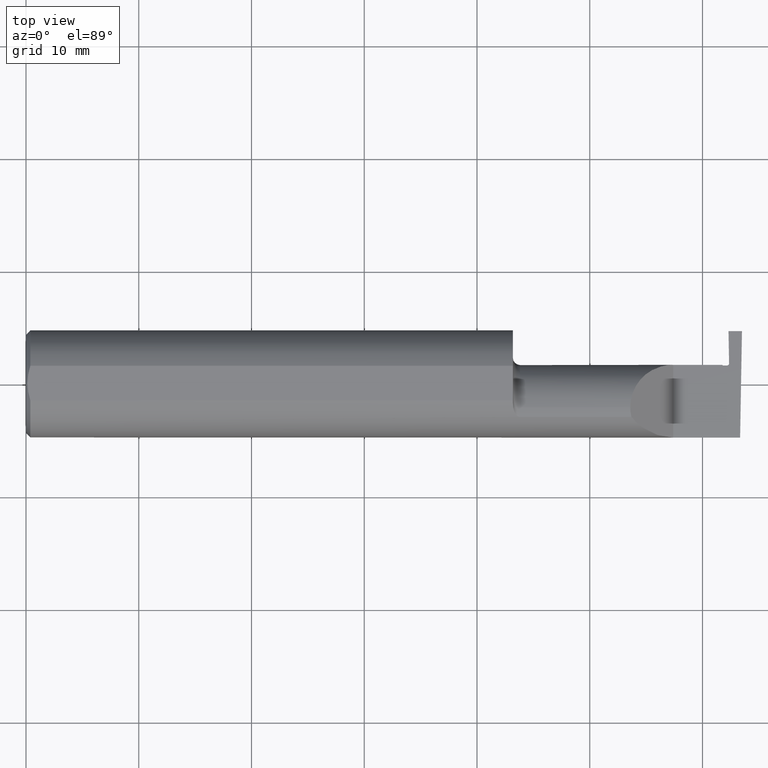
[diagram: clean part render]
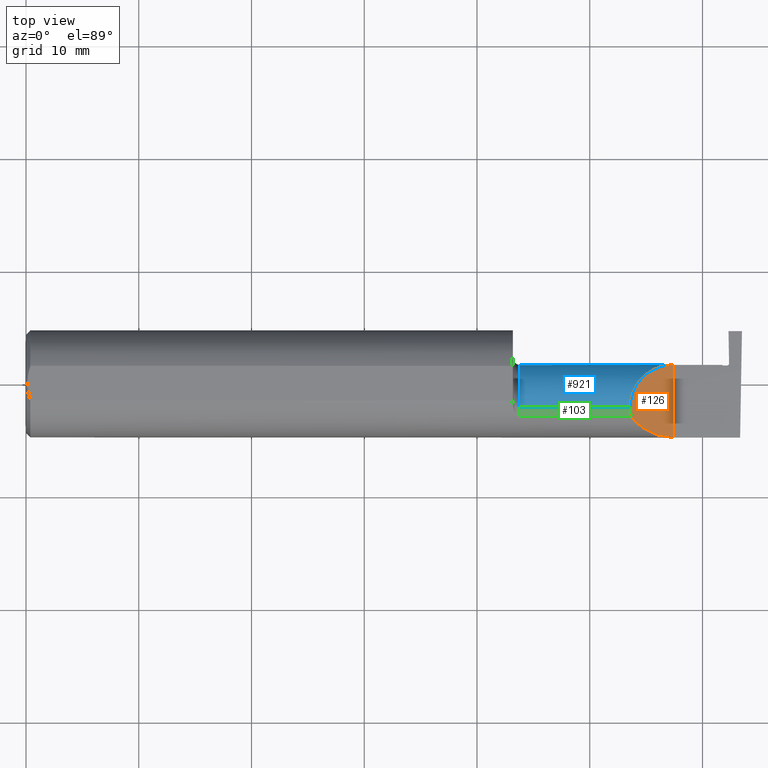
[diagram: same view with three faces highlighted in distinct colors, each labeled with its STEP entity id]
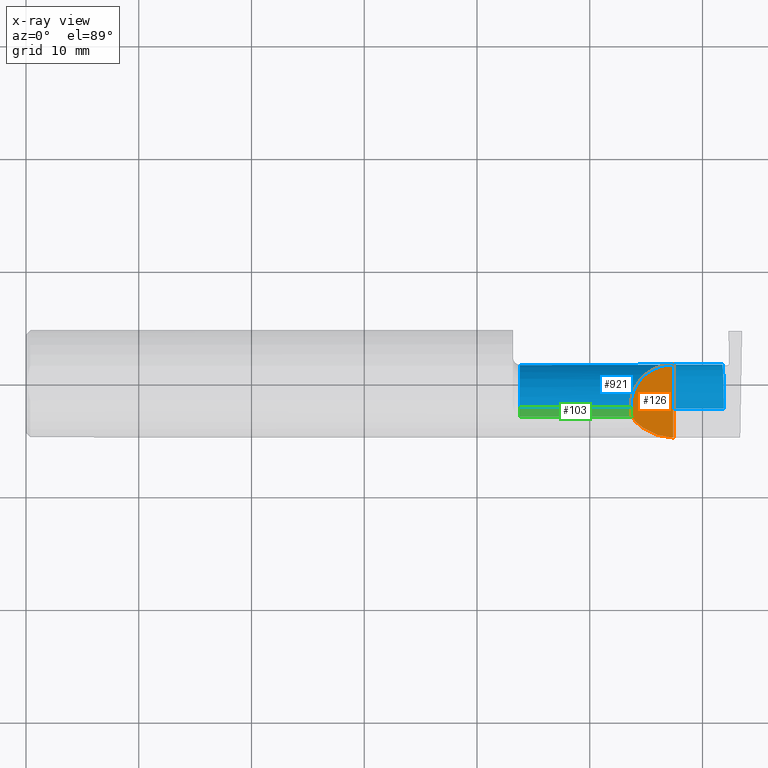
[diagram: x-ray of the same camera — body ghosted, the three highlighted faces saturated]
A machine part, top view with three faces highlighted in distinct colors.
The next image is the same camera in x-ray (body ghosted, the three faces saturated) — at least one of them is partly hidden behind the body in this view.
Their STEP definitions:

[orange] entity #126 — the highlighted planar face has unit normal (-0.7071, 0, -0.7071).
#37 = EDGE_CURVE ( 'NONE', #383, #736, #975, .T. ) ;
#77 = ORIENTED_EDGE ( 'NONE', *, *, #834, .F. ) ;
#78 =( BOUNDED_CURVE ( )  B_SPLINE_CURVE ( 3, ( #220, #608, #853, #603 ),
 .UNSPECIFIED., .F., .F. ) 
 B_SPLINE_CURVE_WITH_KNOTS ( ( 4, 4 ),
 ( 6.055147272130142255, 6.283185307179586232 ),
 .UNSPECIFIED. ) 
 CURVE ( )  GEOMETRIC_REPRESENTATION_ITEM ( )  RATIONAL_B_SPLINE_CURVE ( ( 1.000000000000000000, 0.9956712472009929815, 0.9956712472009929815, 1.000000000000000000 ) ) 
 REPRESENTATION_ITEM ( '' )  );
#100 = CARTESIAN_POINT ( 'NONE',  ( 2.110000000000001208, 0.004517965644035767080, 0.1499999999999999667 ) ) ;
#115 = CARTESIAN_POINT ( 'NONE',  ( 2.260000000000000231, -0.1873499999999999888, 2.939152317953647352E-17 ) ) ;
#126 = ADVANCED_FACE ( 'NONE', ( #275 ), #513, .F. ) ;
#165 = CARTESIAN_POINT ( 'NONE',  ( 2.110000000000001208, -0.08334999999999996578, 0.1499999999999999667 ) ) ;
#199 = AXIS2_PLACEMENT_3D ( 'NONE', #743, #352, #284 ) ;
#220 = CARTESIAN_POINT ( 'NONE',  ( 2.113883229301070532, -0.1172600179964006645, 0.1461167706989302539 ) ) ;
#225 = DIRECTION ( 'NONE',  ( -0.000000000000000000, 1.000000000000000000, -0.000000000000000000 ) ) ;
#275 = FACE_OUTER_BOUND ( 'NONE', #714, .T. ) ;
#284 = DIRECTION ( 'NONE',  ( -0.7071067811865454633, 0.000000000000000000, 0.7071067811865496822 ) ) ;
#291 = VERTEX_POINT ( 'NONE', #556 ) ;
#298 = LINE ( 'NONE', #604, #425 ) ;
#303 = CARTESIAN_POINT ( 'NONE',  ( 2.202189699843949633, -0.1873500000000000998, 0.05781030015605104211 ) ) ;
#312 = CARTESIAN_POINT ( 'NONE',  ( 2.150065971957467070, -0.1623470442677541759, 0.1099340280425336880 ) ) ;
#352 = DIRECTION ( 'NONE',  ( -0.7071067811865496822, 0.000000000000000000, -0.7071067811865454633 ) ) ;
#383 = VERTEX_POINT ( 'NONE', #165 ) ;
#425 = VECTOR ( 'NONE', #225, 39.37007874015748143 ) ;
#438 = VERTEX_POINT ( 'NONE', #115 ) ;
#497 = EDGE_CURVE ( 'NONE', #438, #736, #298, .T. ) ;
#513 = PLANE ( 'NONE',  #199 ) ;
#536 = CARTESIAN_POINT ( 'NONE',  ( 2.113883229301070532, -0.1172600179964006645, 0.1461167706989302539 ) ) ;
#556 = CARTESIAN_POINT ( 'NONE',  ( 2.113883229301070532, -0.1172600179964006645, 0.1461167706989302539 ) ) ;
#572 =( BOUNDED_CURVE ( )  B_SPLINE_CURVE ( 3, ( #686, #303, #312, #536 ),
 .UNSPECIFIED., .F., .F. ) 
 B_SPLINE_CURVE_WITH_KNOTS ( ( 4, 4 ),
 ( 4.712388980384688786, 5.606916381293136631 ),
 .UNSPECIFIED. ) 
 CURVE ( )  GEOMETRIC_REPRESENTATION_ITEM ( )  RATIONAL_B_SPLINE_CURVE ( ( 1.000000000000000000, 0.9344226172588802060, 0.9344226172588802060, 1.000000000000000000 ) ) 
 REPRESENTATION_ITEM ( '' )  );
#603 = CARTESIAN_POINT ( 'NONE',  ( 2.110000000000001208, -0.08334999999999996578, 0.1499999999999999667 ) ) ;
#604 = CARTESIAN_POINT ( 'NONE',  ( 2.260000000000000231, -0.2000000000000000111, 2.939152317953647352E-17 ) ) ;
#608 = CARTESIAN_POINT ( 'NONE',  ( 2.111300037307155986, -0.1061291577212409298, 0.1486999626928446061 ) ) ;
#656 = EDGE_CURVE ( 'NONE', #438, #291, #572, .T. ) ;
#686 = CARTESIAN_POINT ( 'NONE',  ( 2.260000000000000231, -0.1873499999999999888, 2.939152317953647352E-17 ) ) ;
#694 = ORIENTED_EDGE ( 'NONE', *, *, #37, .F. ) ;
#708 = CARTESIAN_POINT ( 'NONE',  ( 2.260000000000000231, 0.06664999999999998703, 2.939152317953647352E-17 ) ) ;
#714 = EDGE_LOOP ( 'NONE', ( #77, #906, #961, #694 ) ) ;
#720 = CARTESIAN_POINT ( 'NONE',  ( 2.172132034355964691, 0.06665000000000000091, 0.08786796564403574761 ) ) ;
#736 = VERTEX_POINT ( 'NONE', #708 ) ;
#740 = CARTESIAN_POINT ( 'NONE',  ( 2.260000000000000231, 0.06664999999999998703, 2.939152317953647352E-17 ) ) ;
#743 = CARTESIAN_POINT ( 'NONE',  ( 2.260000000000000231, -0.2000000000000000111, 2.939152317953647352E-17 ) ) ;
#817 = CARTESIAN_POINT ( 'NONE',  ( 2.110000000000001208, -0.08334999999999996578, 0.1499999999999999667 ) ) ;
#834 = EDGE_CURVE ( 'NONE', #291, #383, #78, .T. ) ;
#853 = CARTESIAN_POINT ( 'NONE',  ( 2.110000000000000764, -0.09477667630339417504, 0.1499999999999999667 ) ) ;
#906 = ORIENTED_EDGE ( 'NONE', *, *, #656, .F. ) ;
#961 = ORIENTED_EDGE ( 'NONE', *, *, #497, .T. ) ;
#975 =( BOUNDED_CURVE ( )  B_SPLINE_CURVE ( 3, ( #817, #100, #720, #740 ),
 .UNSPECIFIED., .F., .T. ) 
 B_SPLINE_CURVE_WITH_KNOTS ( ( 4, 4 ),
 ( 0.000000000000000000, 1.570796326794896558 ),
 .UNSPECIFIED. ) 
 CURVE ( )  GEOMETRIC_REPRESENTATION_ITEM ( )  RATIONAL_B_SPLINE_CURVE ( ( 1.000000000000000000, 0.8047378541243649375, 0.8047378541243649375, 1.000000000000000000 ) ) 
 REPRESENTATION_ITEM ( '' )  );

[blue] entity #921 — the highlighted cylindrical surface (partial cylindrical patch) has radius 3.81 mm, axis along (-1, -0, -0).
#6 = VECTOR ( 'NONE', #580, 39.37007874015748143 ) ;
#19 = CARTESIAN_POINT ( 'NONE',  ( 2.436802821149928633, -0.08335000000000178377, -0.1500000000000000500 ) ) ;
#37 = EDGE_CURVE ( 'NONE', #383, #736, #975, .T. ) ;
#46 = CARTESIAN_POINT ( 'NONE',  ( 1.699999999999999956, -0.08334999999999996578, 0.1499999999999999667 ) ) ;
#55 = CARTESIAN_POINT ( 'NONE',  ( 2.435625600550964887, 0.008070056630586129251, -0.1193229045214244249 ) ) ;
#57 = ORIENTED_EDGE ( 'NONE', *, *, #37, .T. ) ;
#59 = CARTESIAN_POINT ( 'NONE',  ( 2.436195387879636964, -0.01680786726404270501, -0.1347941439950469944 ) ) ;
#63 = EDGE_CURVE ( 'NONE', #383, #1033, #670, .T. ) ;
#65 = DIRECTION ( 'NONE',  ( 1.000000000000000000, 0.000000000000000000, 0.000000000000000000 ) ) ;
#90 = VERTEX_POINT ( 'NONE', #1004 ) ;
#92 = AXIS2_PLACEMENT_3D ( 'NONE', #1008, #938, #850 ) ;
#100 = CARTESIAN_POINT ( 'NONE',  ( 2.110000000000001208, 0.004517965644035767080, 0.1499999999999999667 ) ) ;
#124 = EDGE_LOOP ( 'NONE', ( #901, #357, #420, #173, #57, #1011 ) ) ;
#139 = CARTESIAN_POINT ( 'NONE',  ( 2.434778616767259596, 0.02964324779969526591, -0.09913906211511888666 ) ) ;
#162 = VERTEX_POINT ( 'NONE', #821 ) ;
#165 = CARTESIAN_POINT ( 'NONE',  ( 2.110000000000001208, -0.08334999999999996578, 0.1499999999999999667 ) ) ;
#169 = VECTOR ( 'NONE', #65, 39.37007874015748143 ) ;
#173 = ORIENTED_EDGE ( 'NONE', *, *, #63, .F. ) ;
#226 = CARTESIAN_POINT ( 'NONE',  ( 1.724999999999999867, -0.08334999999999996578, 0.1499999999999999667 ) ) ;
#294 = CARTESIAN_POINT ( 'NONE',  ( 1.699999999999999956, -0.08334999999999996578, 0.000000000000000000 ) ) ;
#304 = CARTESIAN_POINT ( 'NONE',  ( 2.431000000000000494, 0.06664999999999988989, 9.135099441613365556E-18 ) ) ;
#351 = LINE ( 'NONE', #982, #6 ) ;
#357 = ORIENTED_EDGE ( 'NONE', *, *, #890, .T. ) ;
#371 = CARTESIAN_POINT ( 'NONE',  ( 2.434501685452550745, 0.03584079214514208911, -0.09159665080323803332 ) ) ;
#383 = VERTEX_POINT ( 'NONE', #165 ) ;
#390 = B_SPLINE_CURVE_WITH_KNOTS ( 'NONE', 3,
 ( #304, #447, #994, #928, #767, #371, #139, #594, #55, #612, #59, #617, #699, #537 ),
 .UNSPECIFIED., .F., .F.,
 ( 4, 2, 2, 2, 2, 2, 4 ),
 ( 4.190616790185394939E-12, 0.001502808815335837482, 0.002254213220908447488, 0.003005617626481057927, 0.003757022032053668800, 0.004508426437626278371, 0.006011235248771500984 ),
 .UNSPECIFIED. ) ;
#397 = VERTEX_POINT ( 'NONE', #19 ) ;
#420 = ORIENTED_EDGE ( 'NONE', *, *, #955, .F. ) ;
#442 = CYLINDRICAL_SURFACE ( 'NONE', #587, 0.1499999999999999667 ) ;
#447 = CARTESIAN_POINT ( 'NONE',  ( 2.431759762771723565, 0.06665000002185876571, -0.01979751608576870228 ) ) ;
#448 = DIRECTION ( 'NONE',  ( -1.000000000000000000, -0.000000000000000000, -0.000000000000000000 ) ) ;
#461 = LINE ( 'NONE', #771, #169 ) ;
#480 = VECTOR ( 'NONE', #448, 39.37007874015748143 ) ;
#537 = CARTESIAN_POINT ( 'NONE',  ( 2.436802821149928633, -0.08335000000000178377, -0.1500000000000000500 ) ) ;
#580 = DIRECTION ( 'NONE',  ( -1.000000000000000000, -0.000000000000000000, -0.000000000000000000 ) ) ;
#587 = AXIS2_PLACEMENT_3D ( 'NONE', #294, #843, #1016 ) ;
#594 = CARTESIAN_POINT ( 'NONE',  ( 2.435340364421067605, 0.01578456786428816469, -0.1129971908489303400 ) ) ;
#612 = CARTESIAN_POINT ( 'NONE',  ( 2.436047627063565368, -0.008191913527186078098, -0.1301800458423393592 ) ) ;
#617 = CARTESIAN_POINT ( 'NONE',  ( 2.436600921448460078, -0.04414771275001330708, -0.1461247665934777284 ) ) ;
#648 = EDGE_CURVE ( 'NONE', #736, #90, #461, .T. ) ;
#670 = LINE ( 'NONE', #46, #480 ) ;
#681 = FACE_OUTER_BOUND ( 'NONE', #124, .T. ) ;
#699 = CARTESIAN_POINT ( 'NONE',  ( 2.436823271145520220, -0.06360485849426596172, -0.1500000000000001887 ) ) ;
#708 = CARTESIAN_POINT ( 'NONE',  ( 2.260000000000000231, 0.06664999999999998703, 2.939152317953647352E-17 ) ) ;
#720 = CARTESIAN_POINT ( 'NONE',  ( 2.172132034355964691, 0.06665000000000000091, 0.08786796564403574761 ) ) ;
#736 = VERTEX_POINT ( 'NONE', #708 ) ;
#740 = CARTESIAN_POINT ( 'NONE',  ( 2.260000000000000231, 0.06664999999999998703, 2.939152317953647352E-17 ) ) ;
#767 = CARTESIAN_POINT ( 'NONE',  ( 2.433917707009700226, 0.04676326156913000742, -0.07527901788944874051 ) ) ;
#771 = CARTESIAN_POINT ( 'NONE',  ( 1.699999999999999956, 0.06665000000000001479, 9.797174393178832313E-17 ) ) ;
#817 = CARTESIAN_POINT ( 'NONE',  ( 2.110000000000001208, -0.08334999999999996578, 0.1499999999999999667 ) ) ;
#821 = CARTESIAN_POINT ( 'NONE',  ( 1.724999999999999867, -0.08334999999999995191, -0.1499999999999999667 ) ) ;
#843 = DIRECTION ( 'NONE',  ( -1.000000000000000000, -0.000000000000000000, -0.000000000000000000 ) ) ;
#850 = DIRECTION ( 'NONE',  ( 0.000000000000000000, 0.000000000000000000, 1.000000000000000000 ) ) ;
#890 = EDGE_CURVE ( 'NONE', #397, #162, #351, .T. ) ;
#901 = ORIENTED_EDGE ( 'NONE', *, *, #970, .T. ) ;
#921 = ADVANCED_FACE ( 'NONE', ( #681 ), #442, .T. ) ;
#928 = CARTESIAN_POINT ( 'NONE',  ( 2.433584062737284004, 0.05145648337727204424, -0.06650224088316901427 ) ) ;
#938 = DIRECTION ( 'NONE',  ( -1.000000000000000000, -0.000000000000000000, -0.000000000000000000 ) ) ;
#955 = EDGE_CURVE ( 'NONE', #1033, #162, #993, .T. ) ;
#970 = EDGE_CURVE ( 'NONE', #90, #397, #390, .T. ) ;
#975 =( BOUNDED_CURVE ( )  B_SPLINE_CURVE ( 3, ( #817, #100, #720, #740 ),
 .UNSPECIFIED., .F., .T. ) 
 B_SPLINE_CURVE_WITH_KNOTS ( ( 4, 4 ),
 ( 0.000000000000000000, 1.570796326794896558 ),
 .UNSPECIFIED. ) 
 CURVE ( )  GEOMETRIC_REPRESENTATION_ITEM ( )  RATIONAL_B_SPLINE_CURVE ( ( 1.000000000000000000, 0.8047378541243649375, 0.8047378541243649375, 1.000000000000000000 ) ) 
 REPRESENTATION_ITEM ( '' )  );
#982 = CARTESIAN_POINT ( 'NONE',  ( 1.699999999999999956, -0.08334999999999995191, -0.1499999999999999667 ) ) ;
#993 = CIRCLE ( 'NONE', #92, 0.1499999999999999667 ) ;
#994 = CARTESIAN_POINT ( 'NONE',  ( 2.432485381520250289, 0.06268190983465465882, -0.03944648681647396765 ) ) ;
#1004 = CARTESIAN_POINT ( 'NONE',  ( 2.431000000000000494, 0.06664999999999988989, 9.135099441613365556E-18 ) ) ;
#1008 = CARTESIAN_POINT ( 'NONE',  ( 1.724999999999999867, -0.08334999999999996578, 0.000000000000000000 ) ) ;
#1011 = ORIENTED_EDGE ( 'NONE', *, *, #648, .T. ) ;
#1016 = DIRECTION ( 'NONE',  ( 0.000000000000000000, 0.000000000000000000, 1.000000000000000000 ) ) ;
#1033 = VERTEX_POINT ( 'NONE', #226 ) ;

[green] entity #103 — the highlighted cylindrical surface (partial cylindrical patch) has radius 3.81 mm, axis along (-1, -0, -0).
#33 = DIRECTION ( 'NONE',  ( 1.000000000000000000, 0.000000000000000000, 0.000000000000000000 ) ) ;
#46 = CARTESIAN_POINT ( 'NONE',  ( 1.699999999999999956, -0.08334999999999996578, 0.1499999999999999667 ) ) ;
#63 = EDGE_CURVE ( 'NONE', #383, #1033, #670, .T. ) ;
#78 =( BOUNDED_CURVE ( )  B_SPLINE_CURVE ( 3, ( #220, #608, #853, #603 ),
 .UNSPECIFIED., .F., .F. ) 
 B_SPLINE_CURVE_WITH_KNOTS ( ( 4, 4 ),
 ( 6.055147272130142255, 6.283185307179586232 ),
 .UNSPECIFIED. ) 
 CURVE ( )  GEOMETRIC_REPRESENTATION_ITEM ( )  RATIONAL_B_SPLINE_CURVE ( ( 1.000000000000000000, 0.9956712472009929815, 0.9956712472009929815, 1.000000000000000000 ) ) 
 REPRESENTATION_ITEM ( '' )  );
#103 = ADVANCED_FACE ( 'NONE', ( #118 ), #112, .T. ) ;
#112 = CYLINDRICAL_SURFACE ( 'NONE', #249, 0.1499999999999999667 ) ;
#118 = FACE_OUTER_BOUND ( 'NONE', #1024, .T. ) ;
#165 = CARTESIAN_POINT ( 'NONE',  ( 2.110000000000001208, -0.08334999999999996578, 0.1499999999999999667 ) ) ;
#202 = DIRECTION ( 'NONE',  ( -1.000000000000000000, -0.000000000000000000, -0.000000000000000000 ) ) ;
#220 = CARTESIAN_POINT ( 'NONE',  ( 2.113883229301070532, -0.1172600179964006645, 0.1461167706989302539 ) ) ;
#226 = CARTESIAN_POINT ( 'NONE',  ( 1.724999999999999867, -0.08334999999999996578, 0.1499999999999999667 ) ) ;
#249 = AXIS2_PLACEMENT_3D ( 'NONE', #295, #989, #606 ) ;
#291 = VERTEX_POINT ( 'NONE', #556 ) ;
#295 = CARTESIAN_POINT ( 'NONE',  ( 1.699999999999999956, -0.08334999999999996578, 0.000000000000000000 ) ) ;
#297 = DIRECTION ( 'NONE',  ( 0.000000000000000000, 0.000000000000000000, 1.000000000000000000 ) ) ;
#318 = CARTESIAN_POINT ( 'NONE',  ( 1.724999999999999867, -0.1172600179964007477, 0.1461167706989302539 ) ) ;
#362 = ORIENTED_EDGE ( 'NONE', *, *, #813, .F. ) ;
#382 = VECTOR ( 'NONE', #33, 39.37007874015748143 ) ;
#383 = VERTEX_POINT ( 'NONE', #165 ) ;
#448 = DIRECTION ( 'NONE',  ( -1.000000000000000000, -0.000000000000000000, -0.000000000000000000 ) ) ;
#460 = AXIS2_PLACEMENT_3D ( 'NONE', #878, #202, #297 ) ;
#480 = VECTOR ( 'NONE', #448, 39.37007874015748143 ) ;
#487 = ORIENTED_EDGE ( 'NONE', *, *, #63, .T. ) ;
#556 = CARTESIAN_POINT ( 'NONE',  ( 2.113883229301070532, -0.1172600179964006645, 0.1461167706989302539 ) ) ;
#603 = CARTESIAN_POINT ( 'NONE',  ( 2.110000000000001208, -0.08334999999999996578, 0.1499999999999999667 ) ) ;
#606 = DIRECTION ( 'NONE',  ( 0.000000000000000000, 0.000000000000000000, 1.000000000000000000 ) ) ;
#608 = CARTESIAN_POINT ( 'NONE',  ( 2.111300037307155986, -0.1061291577212409298, 0.1486999626928446061 ) ) ;
#670 = LINE ( 'NONE', #46, #480 ) ;
#698 = CIRCLE ( 'NONE', #460, 0.1499999999999999667 ) ;
#748 = CARTESIAN_POINT ( 'NONE',  ( 2.086500000000000021, -0.1172600179964007477, 0.1461167706989302817 ) ) ;
#789 = VERTEX_POINT ( 'NONE', #318 ) ;
#813 = EDGE_CURVE ( 'NONE', #789, #1033, #698, .T. ) ;
#824 = LINE ( 'NONE', #748, #382 ) ;
#832 = ORIENTED_EDGE ( 'NONE', *, *, #834, .T. ) ;
#834 = EDGE_CURVE ( 'NONE', #291, #383, #78, .T. ) ;
#853 = CARTESIAN_POINT ( 'NONE',  ( 2.110000000000000764, -0.09477667630339417504, 0.1499999999999999667 ) ) ;
#878 = CARTESIAN_POINT ( 'NONE',  ( 1.724999999999999867, -0.08334999999999996578, 0.000000000000000000 ) ) ;
#910 = EDGE_CURVE ( 'NONE', #789, #291, #824, .T. ) ;
#965 = ORIENTED_EDGE ( 'NONE', *, *, #910, .T. ) ;
#989 = DIRECTION ( 'NONE',  ( -1.000000000000000000, -0.000000000000000000, -0.000000000000000000 ) ) ;
#1024 = EDGE_LOOP ( 'NONE', ( #832, #487, #362, #965 ) ) ;
#1033 = VERTEX_POINT ( 'NONE', #226 ) ;